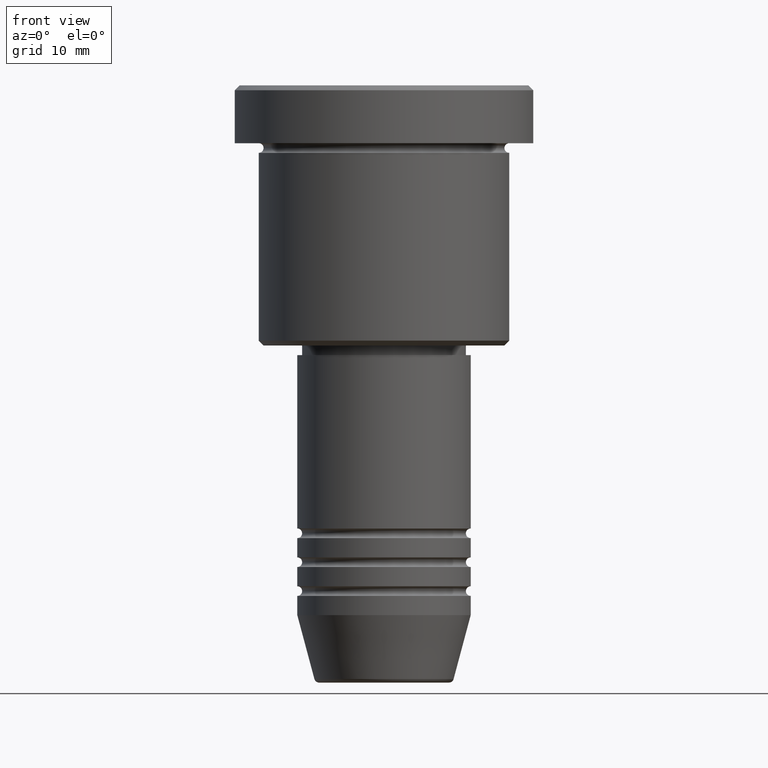
[diagram: clean part render]
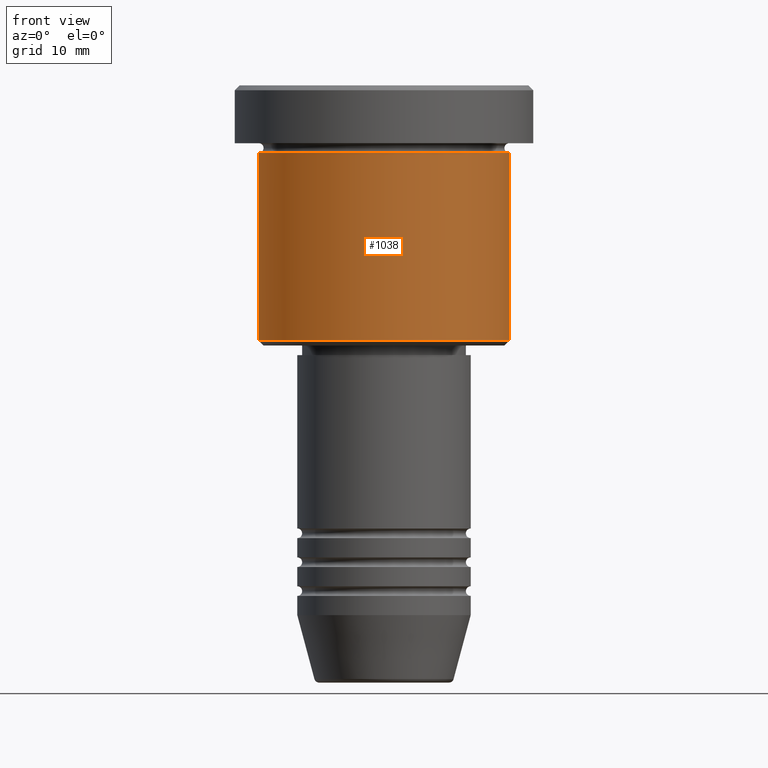
[diagram: same view with one face highlighted and labeled with its STEP entity id]
A machine part, front view. The second image highlights one B-rep face of the part: STEP entity #1038.
In plain terms, the highlighted cylindrical surface (partial cylindrical patch) has radius 13 mm, axis along (-0, -0, 1).
Its self-contained STEP definition (entity closure, byte-faithful):
#42 = ORIENTED_EDGE ( 'NONE', *, *, #940, .T. ) ;
#76 = CIRCLE ( 'NONE', #226, 13.00000000000000000 ) ;
#80 = CARTESIAN_POINT ( 'NONE',  ( -13.00000000000000000, 1.592040838891559095E-15, -26.49999999999998934 ) ) ;
#125 = EDGE_CURVE ( 'NONE', #777, #570, #195, .T. ) ;
#126 = EDGE_CURVE ( 'NONE', #777, #165, #784, .T. ) ;
#165 = VERTEX_POINT ( 'NONE', #298 ) ;
#187 = VERTEX_POINT ( 'NONE', #826 ) ;
#195 = LINE ( 'NONE', #555, #746 ) ;
#226 = AXIS2_PLACEMENT_3D ( 'NONE', #816, #1032, #577 ) ;
#229 = DIRECTION ( 'NONE',  ( 1.000000000000000000, 0.000000000000000000, 0.000000000000000000 ) ) ;
#266 = DIRECTION ( 'NONE',  ( -1.000000000000000000, 0.000000000000000000, 0.000000000000000000 ) ) ;
#298 = CARTESIAN_POINT ( 'NONE',  ( 13.00000000000000000, 0.000000000000000000, -26.49999999999998934 ) ) ;
#316 = CARTESIAN_POINT ( 'NONE',  ( 0.000000000000000000, 0.000000000000000000, 0.000000000000000000 ) ) ;
#414 = FACE_OUTER_BOUND ( 'NONE', #1131, .T. ) ;
#451 = DIRECTION ( 'NONE',  ( -0.000000000000000000, -0.000000000000000000, 1.000000000000000000 ) ) ;
#555 = CARTESIAN_POINT ( 'NONE',  ( -13.00000000000000000, 1.592040838891559095E-15, 0.000000000000000000 ) ) ;
#562 = CARTESIAN_POINT ( 'NONE',  ( 13.00000000000000000, 0.000000000000000000, 0.000000000000000000 ) ) ;
#564 = EDGE_CURVE ( 'NONE', #570, #187, #76, .T. ) ;
#570 = VERTEX_POINT ( 'NONE', #823 ) ;
#577 = DIRECTION ( 'NONE',  ( 1.000000000000000000, 0.000000000000000000, 0.000000000000000000 ) ) ;
#625 = ORIENTED_EDGE ( 'NONE', *, *, #126, .T. ) ;
#647 = DIRECTION ( 'NONE',  ( -0.000000000000000000, -0.000000000000000000, 1.000000000000000000 ) ) ;
#657 = ORIENTED_EDGE ( 'NONE', *, *, #564, .F. ) ;
#675 = DIRECTION ( 'NONE',  ( -0.000000000000000000, -0.000000000000000000, 1.000000000000000000 ) ) ;
#738 = ORIENTED_EDGE ( 'NONE', *, *, #125, .F. ) ;
#746 = VECTOR ( 'NONE', #799, 1000.000000000000000 ) ;
#749 = LINE ( 'NONE', #562, #1160 ) ;
#777 = VERTEX_POINT ( 'NONE', #80 ) ;
#784 = CIRCLE ( 'NONE', #919, 13.00000000000000000 ) ;
#799 = DIRECTION ( 'NONE',  ( -0.000000000000000000, -0.000000000000000000, 1.000000000000000000 ) ) ;
#816 = CARTESIAN_POINT ( 'NONE',  ( 0.000000000000000000, 0.000000000000000000, -6.999999999999995559 ) ) ;
#823 = CARTESIAN_POINT ( 'NONE',  ( -13.00000000000000000, 1.592040838891559095E-15, -6.999999999999995559 ) ) ;
#826 = CARTESIAN_POINT ( 'NONE',  ( 13.00000000000000000, 0.000000000000000000, -6.999999999999995559 ) ) ;
#889 = AXIS2_PLACEMENT_3D ( 'NONE', #316, #675, #229 ) ;
#919 = AXIS2_PLACEMENT_3D ( 'NONE', #1092, #451, #266 ) ;
#940 = EDGE_CURVE ( 'NONE', #165, #187, #749, .T. ) ;
#1032 = DIRECTION ( 'NONE',  ( -0.000000000000000000, -0.000000000000000000, 1.000000000000000000 ) ) ;
#1038 = ADVANCED_FACE ( 'NONE', ( #414 ), #1133, .T. ) ;
#1092 = CARTESIAN_POINT ( 'NONE',  ( 0.000000000000000000, 0.000000000000000000, -26.49999999999998934 ) ) ;
#1131 = EDGE_LOOP ( 'NONE', ( #738, #625, #42, #657 ) ) ;
#1133 = CYLINDRICAL_SURFACE ( 'NONE', #889, 13.00000000000000000 ) ;
#1160 = VECTOR ( 'NONE', #647, 1000.000000000000000 ) ;